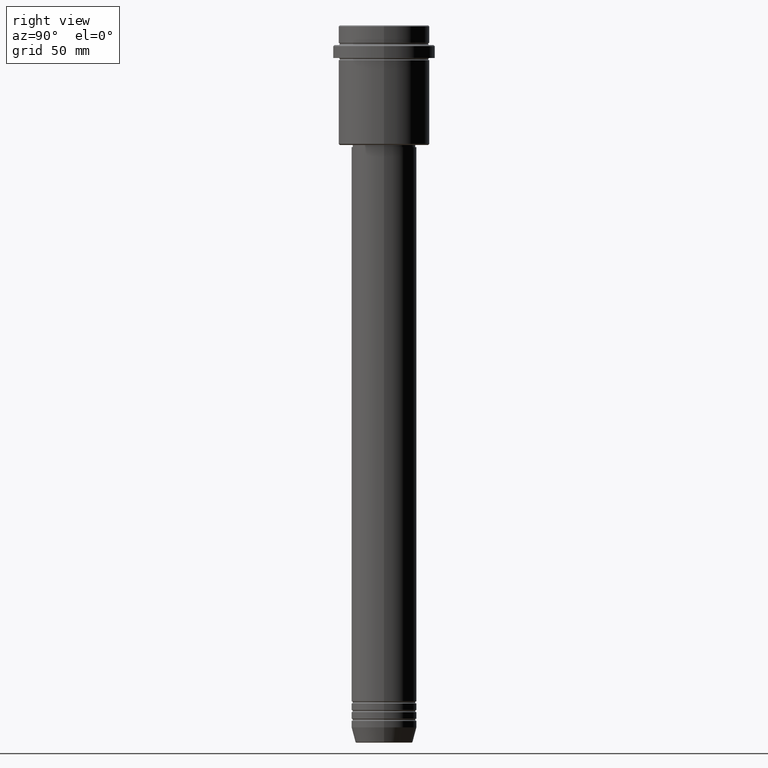
[diagram: clean part render]
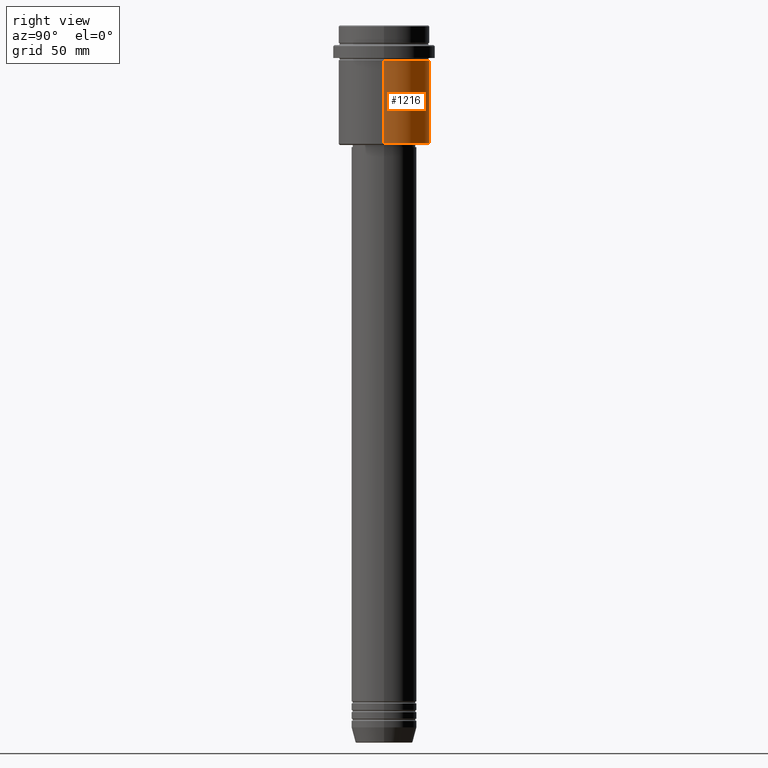
[diagram: same view with one face highlighted and labeled with its STEP entity id]
A machine part, right view. The second image highlights one B-rep face of the part: STEP entity #1216.
In plain terms, the highlighted cylindrical surface (partial cylindrical patch) has radius 21 mm, axis along (-0, -0, 1).
Its self-contained STEP definition (entity closure, byte-faithful):
#114 = VECTOR ( 'NONE', #1104, 1000.000000000000000 ) ;
#121 = DIRECTION ( 'NONE',  ( 1.000000000000000000, 0.000000000000000000, 0.000000000000000000 ) ) ;
#134 = AXIS2_PLACEMENT_3D ( 'NONE', #1190, #352, #121 ) ;
#142 = DIRECTION ( 'NONE',  ( -0.000000000000000000, -0.000000000000000000, 1.000000000000000000 ) ) ;
#241 = CARTESIAN_POINT ( 'NONE',  ( -20.99999999999999645, 2.571758278209441267E-15, 0.000000000000000000 ) ) ;
#267 = EDGE_CURVE ( 'NONE', #1036, #1291, #657, .T. ) ;
#278 = ORIENTED_EDGE ( 'NONE', *, *, #267, .T. ) ;
#352 = DIRECTION ( 'NONE',  ( -0.000000000000000000, -0.000000000000000000, 1.000000000000000000 ) ) ;
#421 = FACE_OUTER_BOUND ( 'NONE', #1042, .T. ) ;
#451 = LINE ( 'NONE', #241, #114 ) ;
#546 = CIRCLE ( 'NONE', #134, 20.99999999999999645 ) ;
#574 = DIRECTION ( 'NONE',  ( -1.000000000000000000, 0.000000000000000000, 0.000000000000000000 ) ) ;
#628 = ORIENTED_EDGE ( 'NONE', *, *, #1378, .F. ) ;
#656 = CARTESIAN_POINT ( 'NONE',  ( -20.99999999999999645, 2.571758278209441267E-15, -54.49999999999996447 ) ) ;
#657 = CIRCLE ( 'NONE', #771, 20.99999999999999645 ) ;
#694 = CARTESIAN_POINT ( 'NONE',  ( 20.99999999999999645, 0.000000000000000000, -54.49999999999996447 ) ) ;
#752 = CYLINDRICAL_SURFACE ( 'NONE', #1067, 20.99999999999999645 ) ;
#771 = AXIS2_PLACEMENT_3D ( 'NONE', #1111, #142, #574 ) ;
#775 = VECTOR ( 'NONE', #989, 1000.000000000000000 ) ;
#795 = ORIENTED_EDGE ( 'NONE', *, *, #1311, .T. ) ;
#855 = CARTESIAN_POINT ( 'NONE',  ( 0.000000000000000000, 0.000000000000000000, 0.000000000000000000 ) ) ;
#881 = LINE ( 'NONE', #1341, #775 ) ;
#893 = VERTEX_POINT ( 'NONE', #1213 ) ;
#918 = EDGE_CURVE ( 'NONE', #1036, #1225, #881, .T. ) ;
#966 = CARTESIAN_POINT ( 'NONE',  ( 20.99999999999999645, 0.000000000000000000, -16.00000000000000355 ) ) ;
#989 = DIRECTION ( 'NONE',  ( -0.000000000000000000, -0.000000000000000000, 1.000000000000000000 ) ) ;
#1016 = ORIENTED_EDGE ( 'NONE', *, *, #918, .F. ) ;
#1036 = VERTEX_POINT ( 'NONE', #694 ) ;
#1042 = EDGE_LOOP ( 'NONE', ( #278, #795, #628, #1016 ) ) ;
#1067 = AXIS2_PLACEMENT_3D ( 'NONE', #855, #1183, #1293 ) ;
#1104 = DIRECTION ( 'NONE',  ( -0.000000000000000000, -0.000000000000000000, 1.000000000000000000 ) ) ;
#1111 = CARTESIAN_POINT ( 'NONE',  ( 0.000000000000000000, 0.000000000000000000, -54.49999999999996447 ) ) ;
#1183 = DIRECTION ( 'NONE',  ( -0.000000000000000000, -0.000000000000000000, 1.000000000000000000 ) ) ;
#1190 = CARTESIAN_POINT ( 'NONE',  ( 0.000000000000000000, 0.000000000000000000, -16.00000000000000355 ) ) ;
#1213 = CARTESIAN_POINT ( 'NONE',  ( -20.99999999999999645, 2.571758278209441267E-15, -16.00000000000000355 ) ) ;
#1216 = ADVANCED_FACE ( 'NONE', ( #421 ), #752, .T. ) ;
#1225 = VERTEX_POINT ( 'NONE', #966 ) ;
#1291 = VERTEX_POINT ( 'NONE', #656 ) ;
#1293 = DIRECTION ( 'NONE',  ( 1.000000000000000000, 0.000000000000000000, 0.000000000000000000 ) ) ;
#1311 = EDGE_CURVE ( 'NONE', #1291, #893, #451, .T. ) ;
#1341 = CARTESIAN_POINT ( 'NONE',  ( 20.99999999999999645, 0.000000000000000000, 0.000000000000000000 ) ) ;
#1378 = EDGE_CURVE ( 'NONE', #1225, #893, #546, .T. ) ;